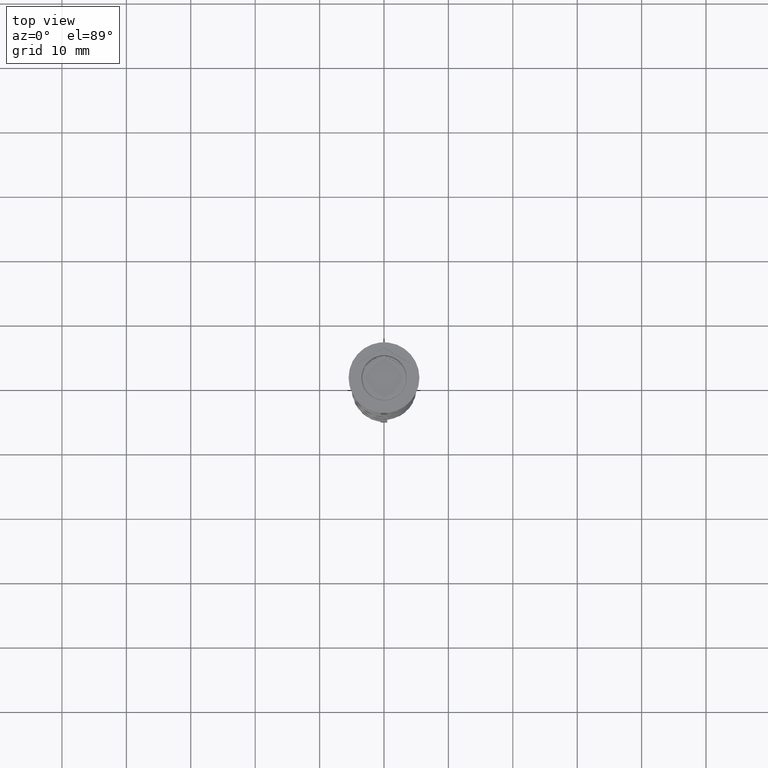
[diagram: clean part render]
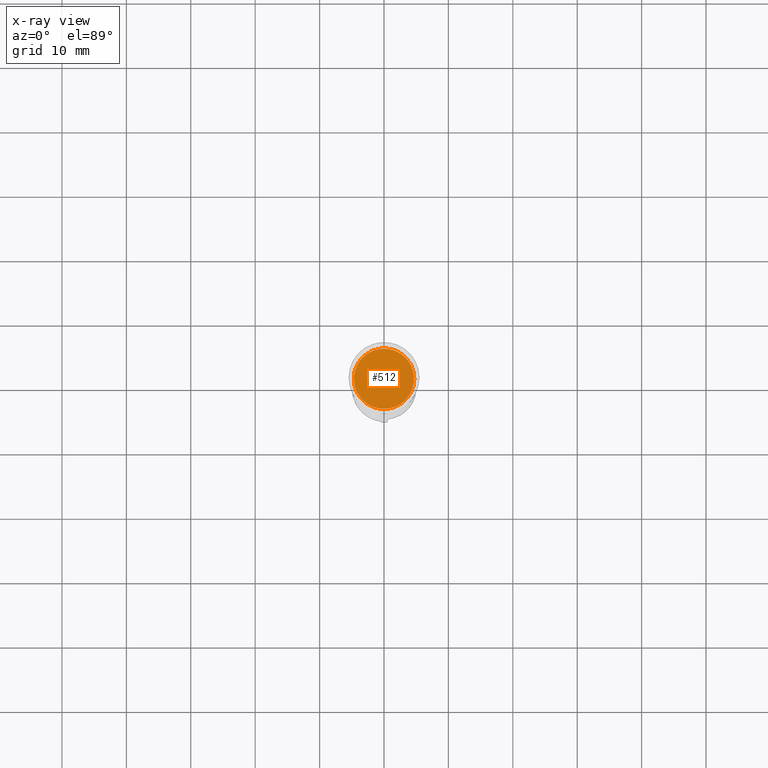
[diagram: x-ray — body ghosted, one internal face saturated and labeled with its STEP entity id]
A machine part, top view, then the same camera in x-ray: the body is ghosted and one INTERNAL B-rep face — a face not visible from any outside direction — is saturated and labeled: STEP entity #512.
In plain terms, the highlighted planar face has unit normal (0, 0, -1).
Its self-contained STEP definition (entity closure, byte-faithful):
#92 = CARTESIAN_POINT ( 'NONE',  ( 0.000000000000000000, 0.000000000000000000, -10.50000000000000178 ) ) ;
#180 = AXIS2_PLACEMENT_3D ( 'NONE', #3125, #3690, #874 ) ;
#296 = CIRCLE ( 'NONE', #1419, 4.700000000000001066 ) ;
#365 = VERTEX_POINT ( 'NONE', #2490 ) ;
#402 = EDGE_CURVE ( 'NONE', #365, #880, #1430, .T. ) ;
#512 = ADVANCED_FACE ( 'NONE', ( #602 ), #805, .F. ) ;
#602 = FACE_OUTER_BOUND ( 'NONE', #2164, .T. ) ;
#668 = ORIENTED_EDGE ( 'NONE', *, *, #1908, .T. ) ;
#731 = DIRECTION ( 'NONE',  ( -1.000000000000000000, 0.000000000000000000, 0.000000000000000000 ) ) ;
#762 = DIRECTION ( 'NONE',  ( -1.000000000000000000, 0.000000000000000000, 0.000000000000000000 ) ) ;
#805 = PLANE ( 'NONE',  #180 ) ;
#874 = DIRECTION ( 'NONE',  ( -1.000000000000000000, 0.000000000000000000, -0.000000000000000000 ) ) ;
#880 = VERTEX_POINT ( 'NONE', #1633 ) ;
#945 = DIRECTION ( 'NONE',  ( -0.000000000000000000, -0.000000000000000000, 1.000000000000000000 ) ) ;
#1040 = ORIENTED_EDGE ( 'NONE', *, *, #402, .T. ) ;
#1419 = AXIS2_PLACEMENT_3D ( 'NONE', #92, #945, #762 ) ;
#1430 = CIRCLE ( 'NONE', #3519, 4.700000000000001066 ) ;
#1633 = CARTESIAN_POINT ( 'NONE',  ( -4.700000000000001066, 0.000000000000000000, -10.50000000000000178 ) ) ;
#1908 = EDGE_CURVE ( 'NONE', #880, #365, #296, .T. ) ;
#2164 = EDGE_LOOP ( 'NONE', ( #668, #1040 ) ) ;
#2435 = CARTESIAN_POINT ( 'NONE',  ( 0.000000000000000000, 0.000000000000000000, -10.50000000000000178 ) ) ;
#2490 = CARTESIAN_POINT ( 'NONE',  ( 4.700000000000001066, 5.939536975864663955E-16, -10.50000000000000178 ) ) ;
#3125 = CARTESIAN_POINT ( 'NONE',  ( 0.000000000000000000, 0.000000000000000000, -10.50000000000000178 ) ) ;
#3519 = AXIS2_PLACEMENT_3D ( 'NONE', #2435, #3549, #731 ) ;
#3549 = DIRECTION ( 'NONE',  ( -0.000000000000000000, -0.000000000000000000, 1.000000000000000000 ) ) ;
#3690 = DIRECTION ( 'NONE',  ( 0.000000000000000000, 0.000000000000000000, -1.000000000000000000 ) ) ;